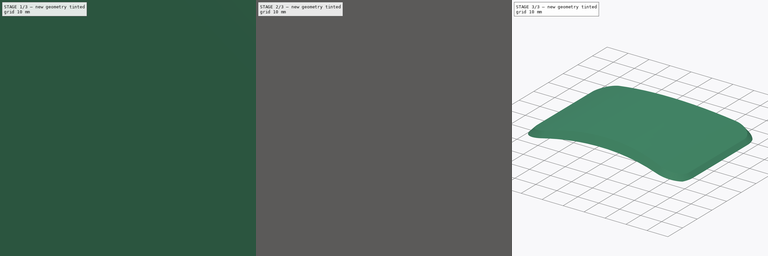
[diagram: build sequence overview — one tinted view per stage of 3, left to right]
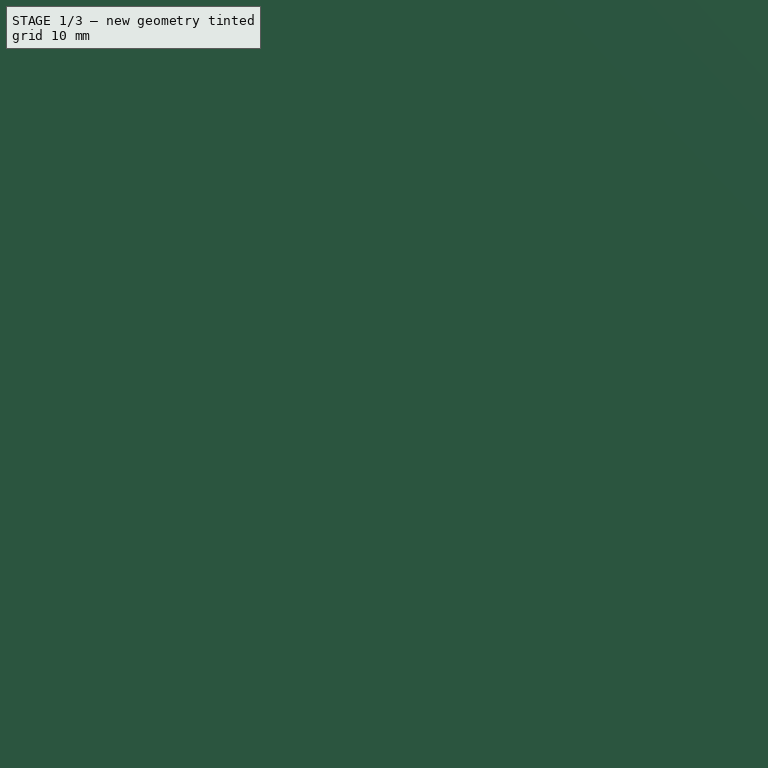
[diagram: stage 1 of 3 — iso view after this stage's code; geometry added in this stage tinted green]
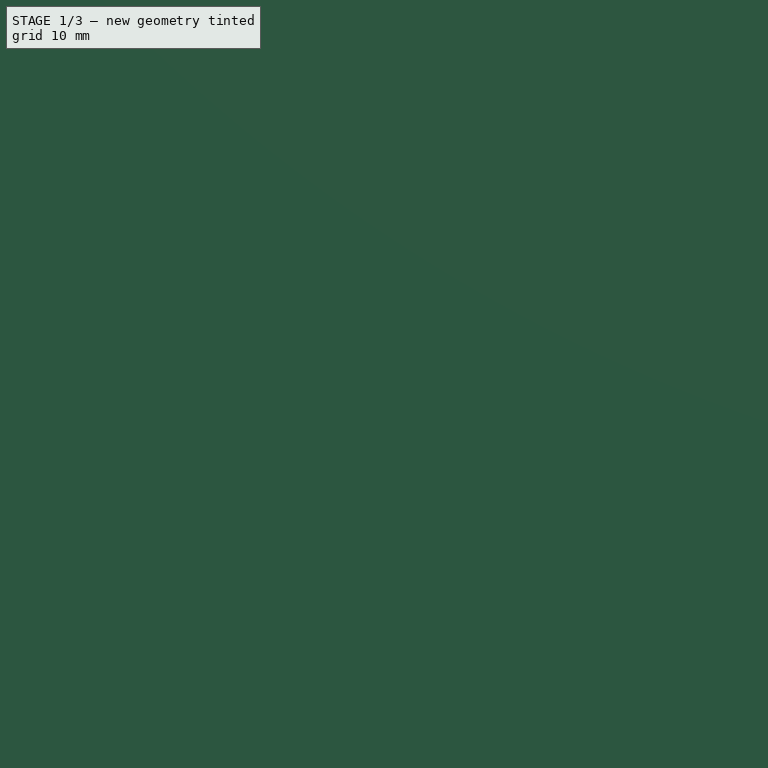
[diagram: stage 1 of 3 — front view after this stage's code; geometry added in this stage tinted green]
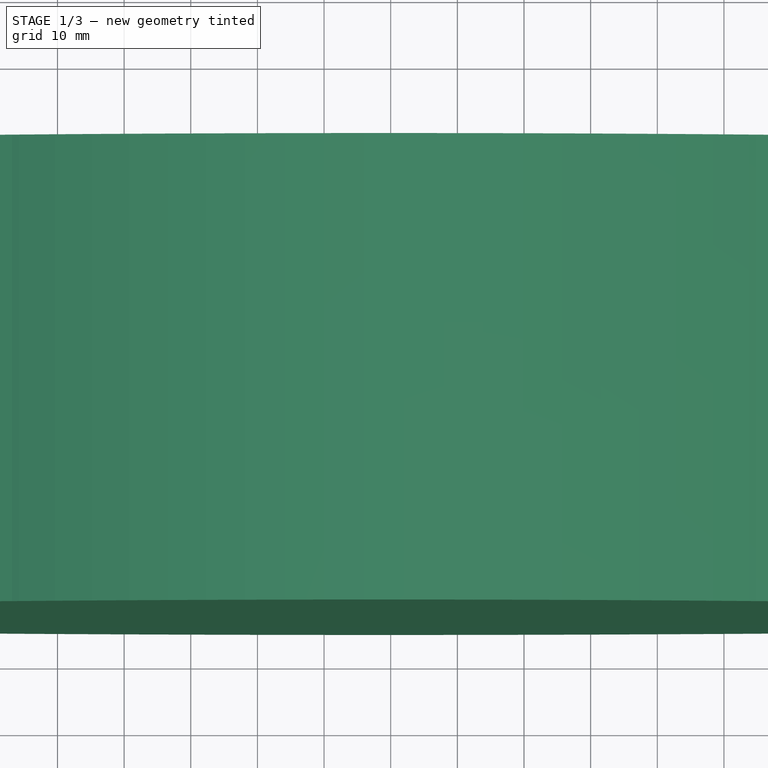
[diagram: stage 1 of 3 — top view after this stage's code; geometry added in this stage tinted green]
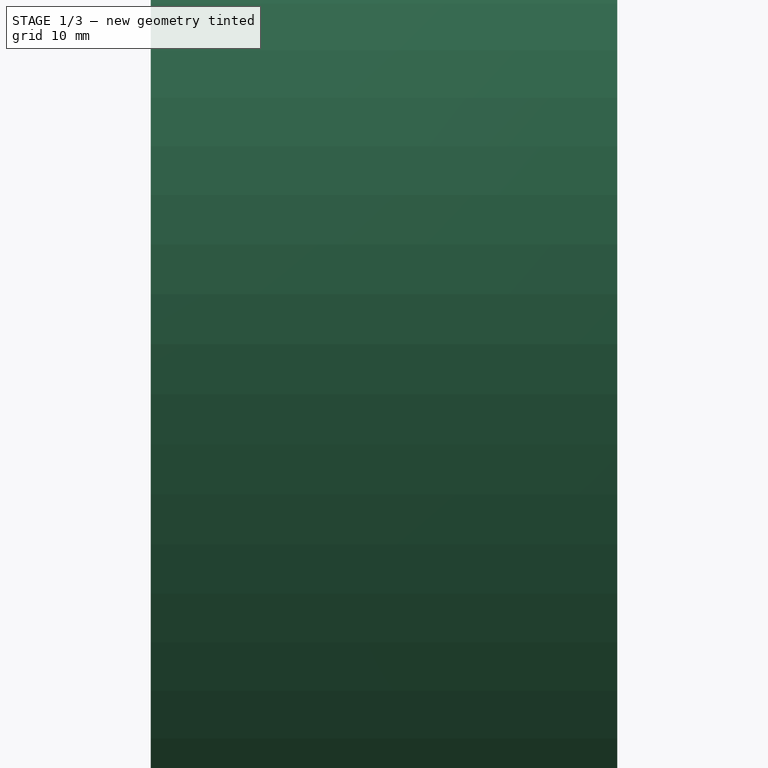
[diagram: stage 1 of 3 — right view after this stage's code; geometry added in this stage tinted green]
FCSTD DOCUMENT  (FreeCAD 0.16R6705 (Git))
Label: sportello
License: All rights reserved
LicenseURL: http://it.wikipedia.org/wiki/<copyright redacted>
objects: Sketcher::SketchObject×4, PartDesign::Pad×2, Part::Loft×1, Part::Cut×1, Part::MultiCommon×1
note: 11 computed .brp shape members not serialized (recipe doc carries the construction recipe); baked Part::Feature solids carry a one-line shape summary decoded from their .brp

FEATURE [Sketcher::SketchObject] Sketch002
  Placement = pos=(0,0,0) rot=(-1,0,0;4.71239rad)
  sketch-geometry (1):
    g0: Circle CenterX=-1.00722 CenterY=-146 CenterZ=0 NormalX=0 NormalY=0 NormalZ=1 Radius=150.92
  constraints (1):
    c: DistanceY(g0,g-1) = 146
FEATURE [PartDesign::Pad] Pad
  Length = 70
  Length2 = 100
  Midplane = true
  Placement = pos=(0,0,0) rot=(-1,0,0;4.71239rad)
  Sketch = -> Sketch002
  Type = 0
FEATURE [Sketcher::SketchObject] Sketch003
  Placement = pos=(0,0,0) rot=(1,0,0;1.5708rad)
  sketch-geometry (1):
    g0: Circle CenterX=-1.00722 CenterY=-112 CenterZ=0 NormalX=0 NormalY=0 NormalZ=1 Radius=120
  constraints (2):
    c: DistanceY(g0,g-1) = 112
    c: Radius(g0) = 120
FEATURE [PartDesign::Pad] Pad001
  Length = 70
  Length2 = 100
  Midplane = true
  Placement = pos=(0,0,0) rot=(1,0,0;1.5708rad)
  Sketch = -> Sketch003
  Type = 0
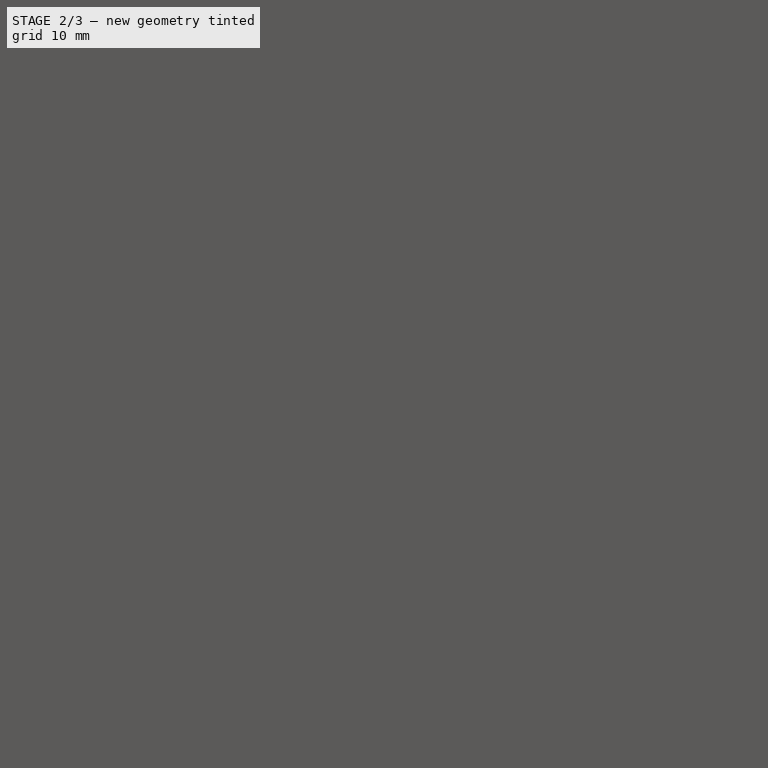
[diagram: stage 2 of 3 — iso view after this stage's code; geometry added in this stage tinted green]
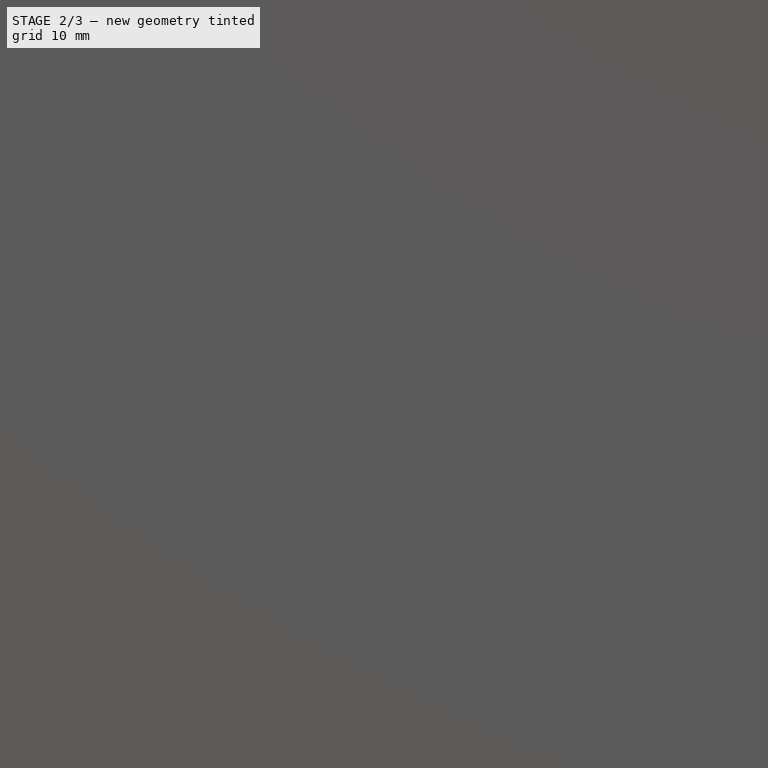
[diagram: stage 2 of 3 — front view after this stage's code; geometry added in this stage tinted green]
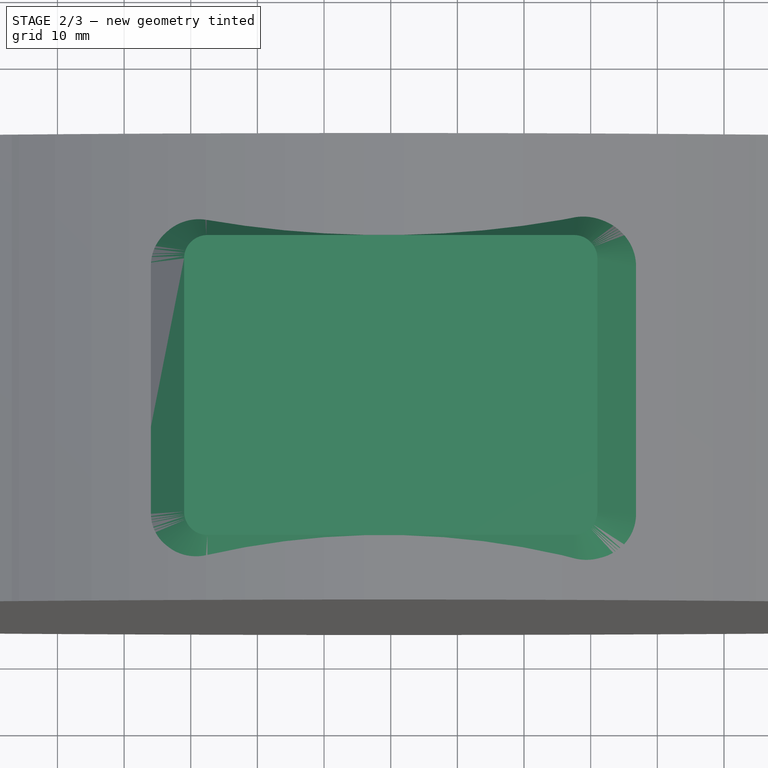
[diagram: stage 2 of 3 — top view after this stage's code; geometry added in this stage tinted green]
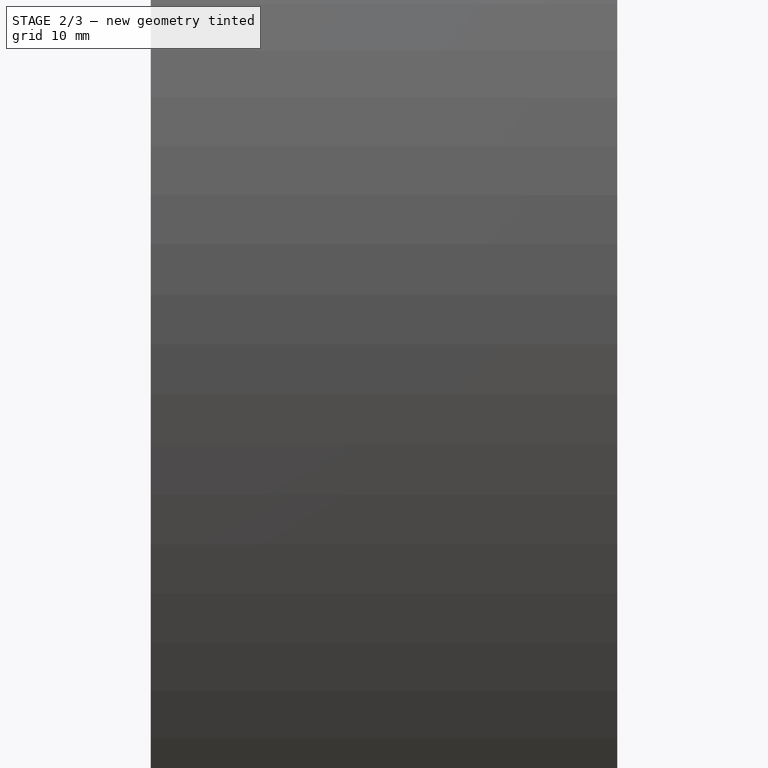
[diagram: stage 2 of 3 — right view after this stage's code; geometry added in this stage tinted green]
FEATURE [Sketcher::SketchObject] Sketch
  sketch-geometry (8):
    g0: LineSegment StartX=-38.586 StartY=14.833 StartZ=0 EndX=-38.586 EndY=-22.167 EndZ=0
    g1: LineSegment StartX=-27.5 StartY=-33.2531 StartZ=0 EndX=27.5 EndY=-33.2531 EndZ=0
    g2: LineSegment StartX=38.586 StartY=-22.167 StartZ=0 EndX=38.586 EndY=14.833 EndZ=0
    g3: LineSegment StartX=27.5 StartY=25.919 StartZ=0 EndX=-27.5 EndY=25.919 EndZ=0
    g4: ArcOfCircle CenterX=-27.5 CenterY=14.833 CenterZ=0 NormalX=0 NormalY=0 NormalZ=1 Radius=11.086 StartAngle=1.5708 EndAngle=3.14159
    g5: ArcOfCircle CenterX=-27.5 CenterY=-22.167 CenterZ=0 NormalX=0 NormalY=0 NormalZ=1 Radius=11.086 StartAngle=3.14159 EndAngle=4.71239
    g6: ArcOfCircle CenterX=27.5 CenterY=-22.167 CenterZ=0 NormalX=0 NormalY=0 NormalZ=1 Radius=11.086 StartAngle=4.71239 EndAngle=6.28319
    g7: ArcOfCircle CenterX=27.5 CenterY=14.833 CenterZ=0 NormalX=0 NormalY=0 NormalZ=1 Radius=11.086 StartAngle=1.4423e-08 EndAngle=1.5708
  constraints (25):
    c: Coincident(g4,g3)
    c: Coincident(g0,g4)
    c: Coincident(g5,g0)
    c: Coincident(g1,g5)
    c: Coincident(g6,g1)
    c: Coincident(g2,g6)
    c: Coincident(g7,g2)
    c: Coincident(g7,g3)
    c: Horizontal(g1)
    c: Horizontal(g3)
    c: Vertical(g0)
    c: Vertical(g2)
    c: Symmetric(g2,g0,g-2)
    c: Equal(g0,g2)
    c: Equal(g3,g1)
    c: Equal(g4,g7)
    c: Equal(g5,g6)
    c: Tangent(g5,g1)
    c: Tangent(g6,g1)
    c: Tangent(g2,g6)
    c: Tangent(g2,g7)
    c: Tangent(g3,g7)
    c: Tangent(g4,g3)
    c: DistanceX(g3,g3) = 55
    c: DistanceY(g0,g0) = 37
FEATURE [Sketcher::SketchObject] Sketch001
  Placement = pos=(0,0,8) rot=(0,0,1;0rad)
  sketch-geometry (8):
    g0: LineSegment StartX=-31 StartY=16.192 StartZ=0 EndX=-31 EndY=-21.808 EndZ=0
    g1: LineSegment StartX=-27.5 StartY=-25.308 StartZ=0 EndX=27.5 EndY=-25.308 EndZ=0
    g2: LineSegment StartX=31 StartY=-21.808 StartZ=0 EndX=31 EndY=16.192 EndZ=0
    g3: LineSegment StartX=27.5 StartY=19.692 StartZ=0 EndX=-27.5 EndY=19.692 EndZ=0
    g4: ArcOfCircle CenterX=-27.5 CenterY=16.192 CenterZ=0 NormalX=0 NormalY=0 NormalZ=1 Radius=3.50001 StartAngle=1.5708 EndAngle=3.14159
    g5: ArcOfCircle CenterX=-27.5 CenterY=-21.808 CenterZ=0 NormalX=0 NormalY=0 NormalZ=1 Radius=3.50001 StartAngle=3.1416 EndAngle=4.71239
    g6: ArcOfCircle CenterX=27.5 CenterY=-21.808 CenterZ=0 NormalX=0 NormalY=0 NormalZ=1 Radius=3.50001 StartAngle=4.71239 EndAngle=6.28318
    g7: ArcOfCircle CenterX=27.5 CenterY=16.192 CenterZ=0 NormalX=0 NormalY=0 NormalZ=1 Radius=3.50001 StartAngle=3.39062e-06 EndAngle=1.5708
  constraints (26):
    c: Coincident(g4,g3)
    c: Coincident(g0,g4)
    c: Coincident(g5,g0)
    c: Coincident(g1,g5)
    c: Coincident(g6,g1)
    c: Coincident(g2,g6)
    c: Coincident(g7,g2)
    c: Coincident(g7,g3)
    c: Horizontal(g1)
    c: Horizontal(g3)
    c: Vertical(g0)
    c: Vertical(g2)
    c: Symmetric(g2,g0,g-2)
    c: Equal(g0,g2)
    c: Equal(g3,g1)
    c: Equal(g4,g7)
    c: Equal(g5,g6)
    c: Tangent(g5,g1)
    c: Tangent(g6,g1)
    c: Tangent(g2,g6)
    c: Tangent(g2,g7)
    c: Tangent(g3,g7)
    c: Tangent(g4,g3)
    c: DistanceX(g3,g3) = 55
    c: DistanceY(g0,g0) = 38
    c: DistanceY(g1,g3) = 45
FEATURE [Part::Loft] Loft
  Closed = false
  Ruled = false
  Sections = -> [Sketch001,Sketch]
  Solid = true
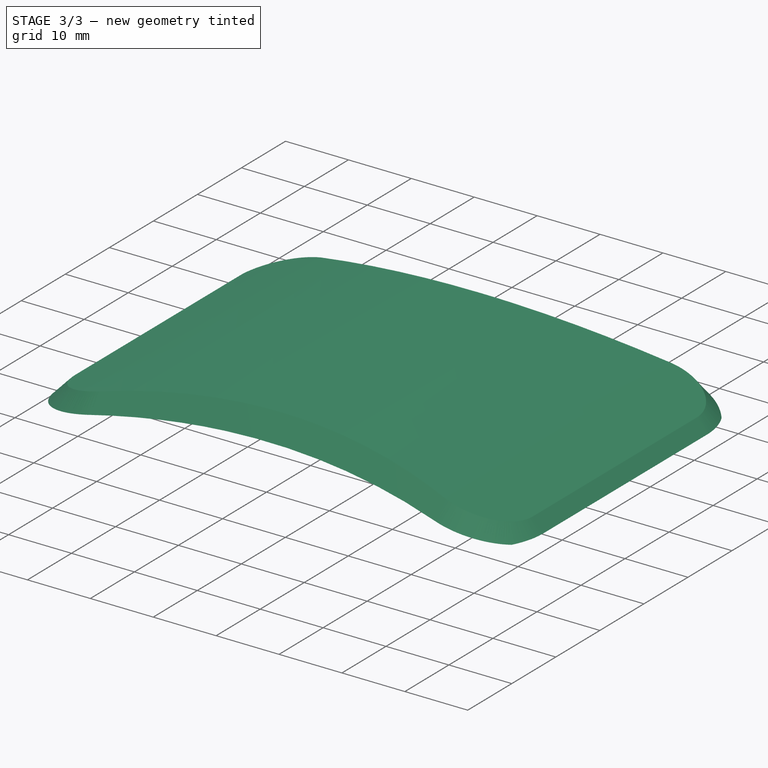
[diagram: stage 3 of 3 — iso view after this stage's code; geometry added in this stage tinted green]
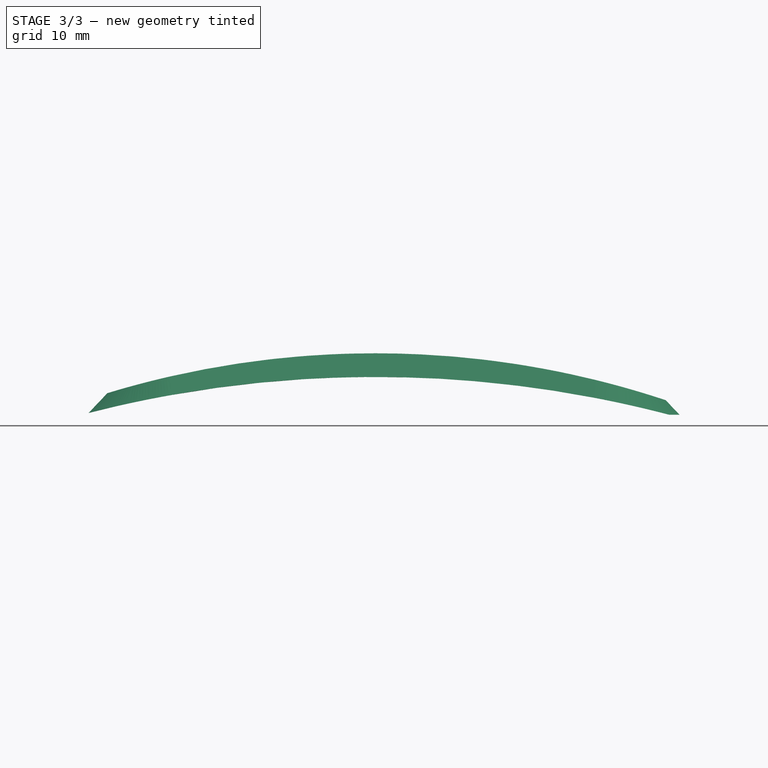
[diagram: stage 3 of 3 — front view after this stage's code; geometry added in this stage tinted green]
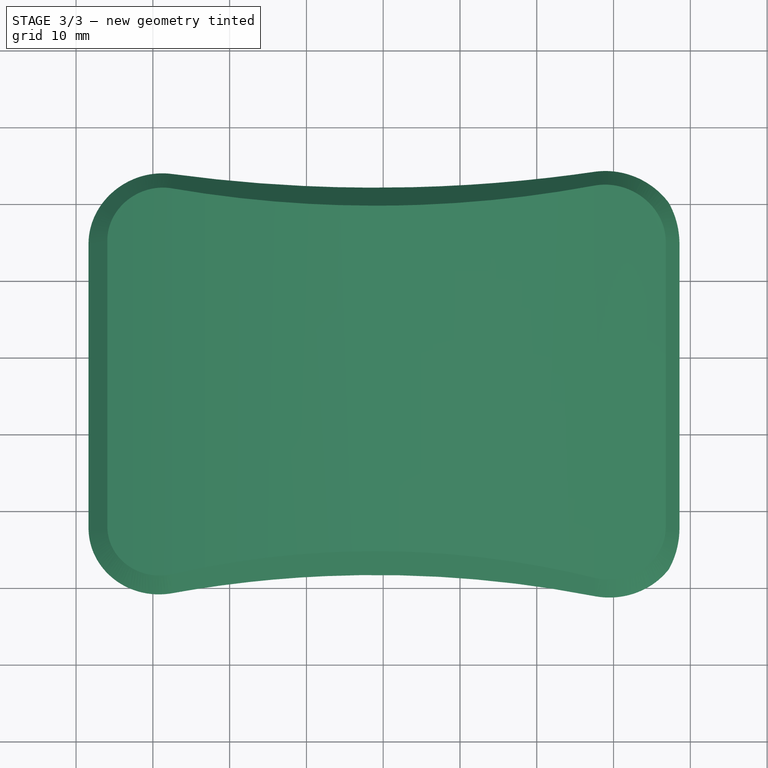
[diagram: stage 3 of 3 — top view after this stage's code; geometry added in this stage tinted green]
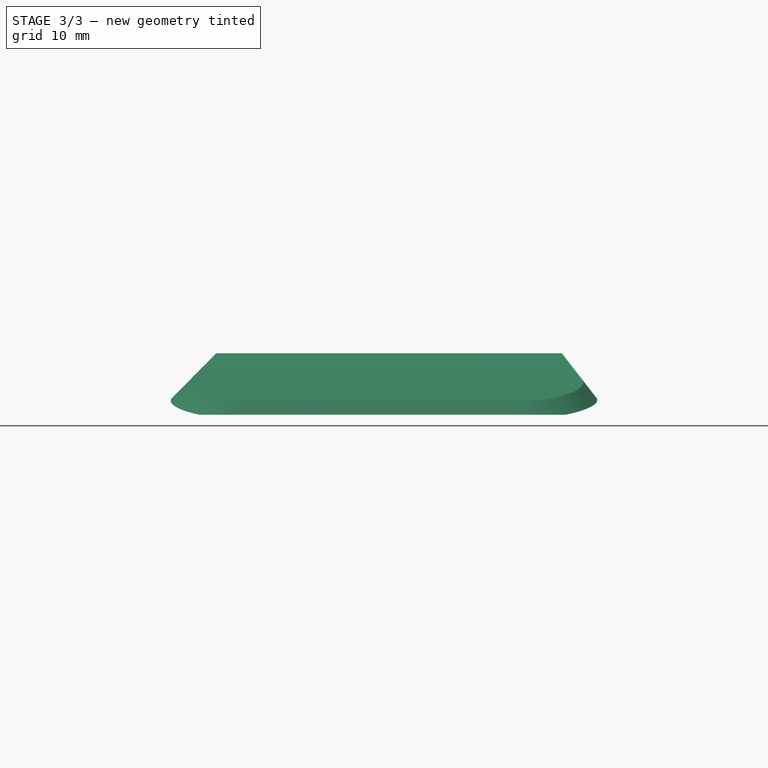
[diagram: stage 3 of 3 — right view after this stage's code; geometry added in this stage tinted green]
FEATURE [Part::Cut] Cut
  Base = -> Loft
  Tool = -> Pad
FEATURE [Part::MultiCommon] Common
  Shapes = -> [Cut,Pad001]
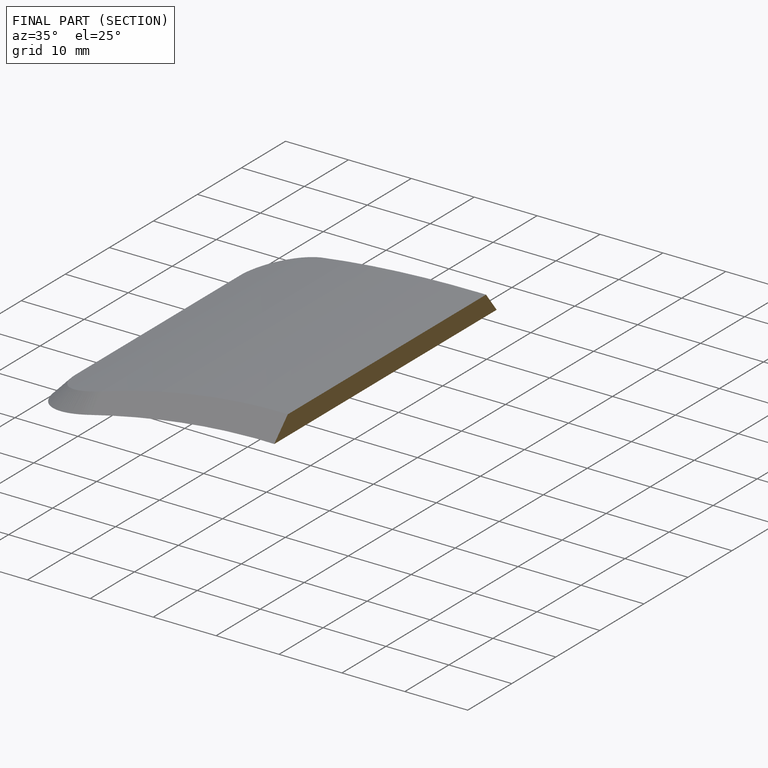
[diagram: finished part — half-section view (interior)]
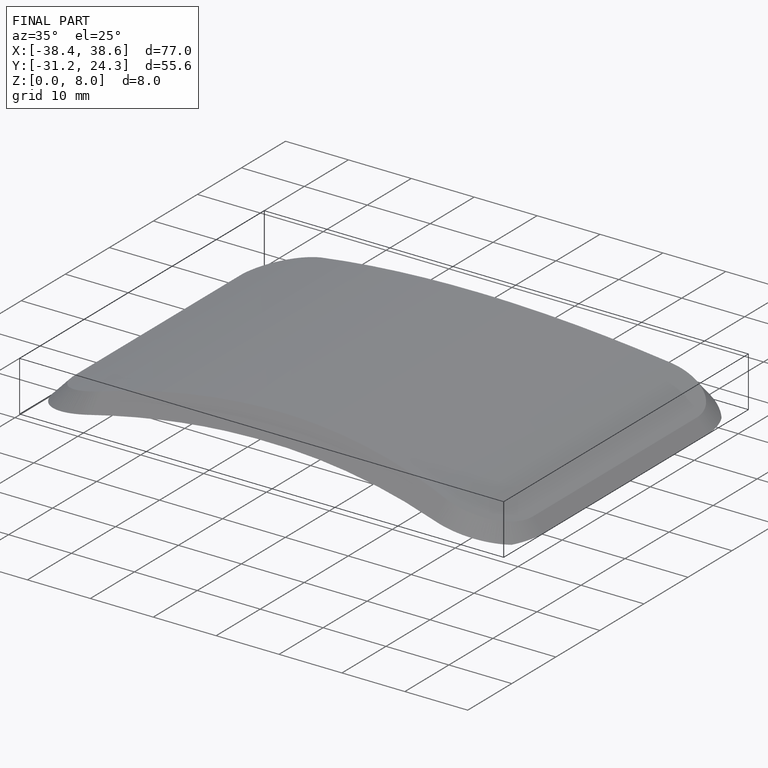
[diagram: finished part — iso view with bounding-box wireframe]
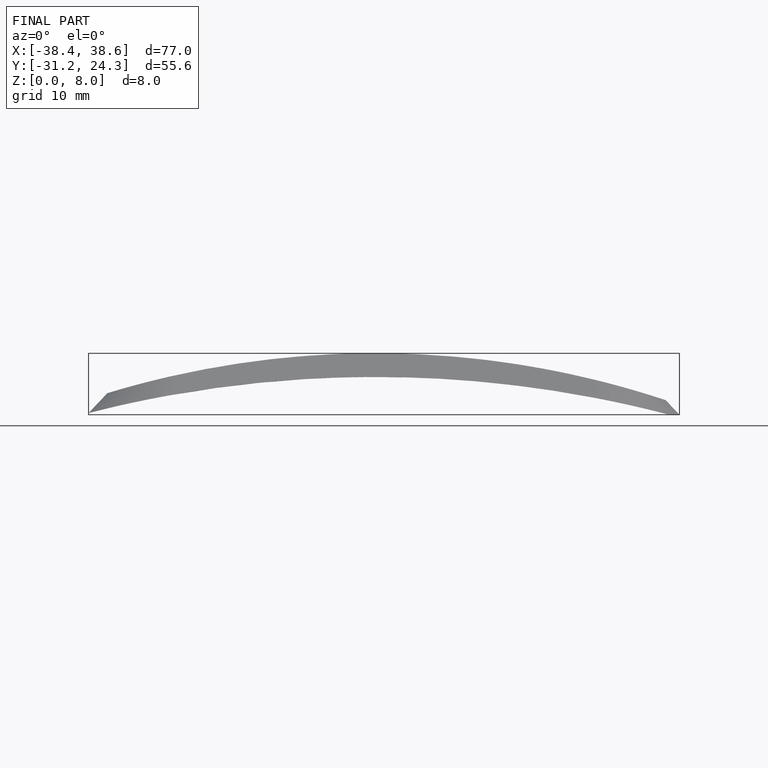
[diagram: finished part — front view with bounding-box wireframe]
